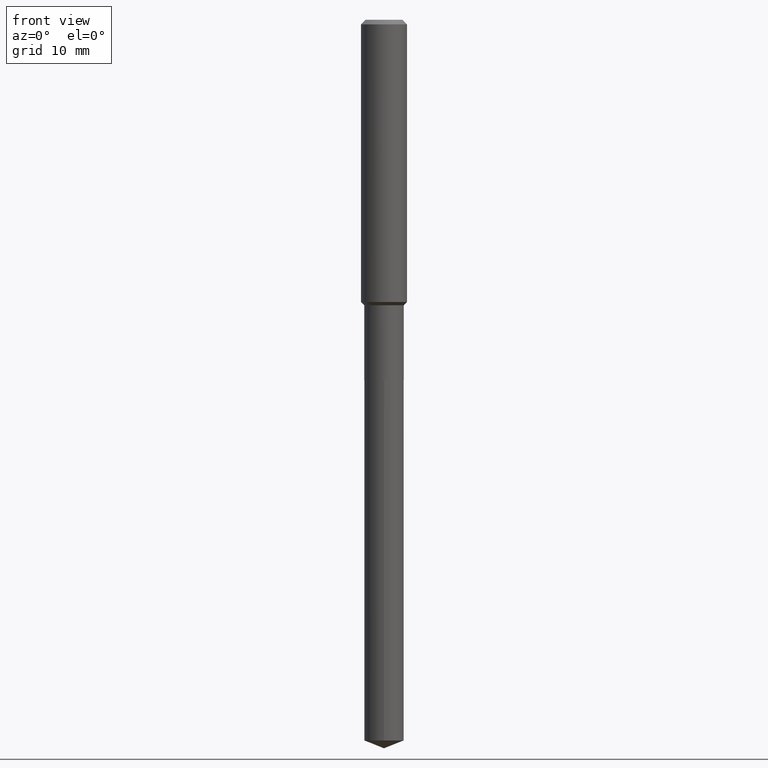
[diagram: clean part render]
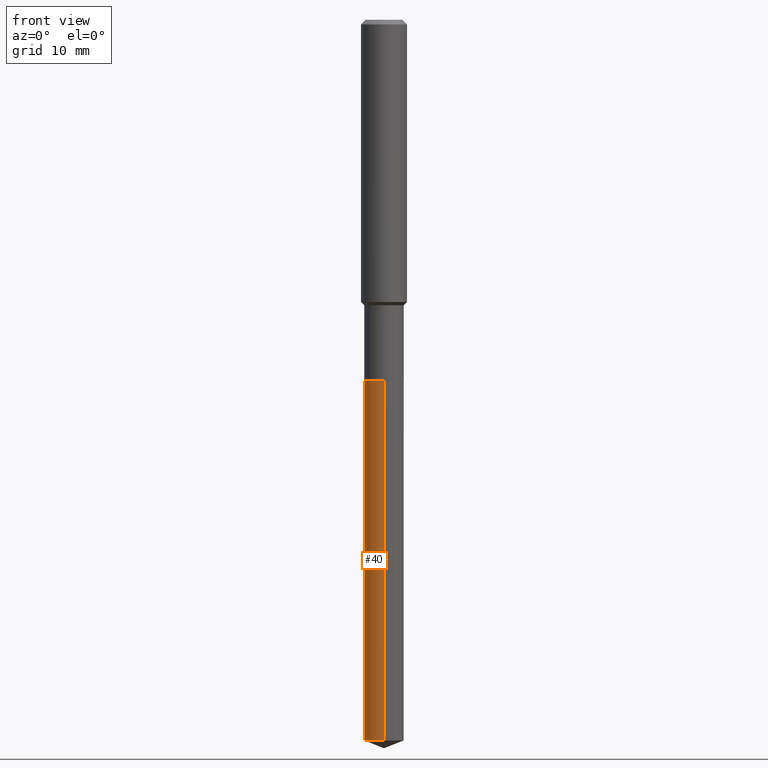
[diagram: same view with one face highlighted and labeled with its STEP entity id]
A machine part, front view. The second image highlights one B-rep face of the part: STEP entity #40.
In plain terms, the highlighted cylindrical surface (edge-blend (fillet) strip) has radius 2.5794 mm, axis along (-0, 0, 1).
Its self-contained STEP definition (entity closure, byte-faithful):
#13 = ORIENTED_EDGE ( 'NONE', *, *, #198, .T. ) ;
#19 = LINE ( 'NONE', #127, #143 ) ;
#20 = FACE_OUTER_BOUND ( 'NONE', #125, .T. ) ;
#24 = VERTEX_POINT ( 'NONE', #255 ) ;
#39 = VERTEX_POINT ( 'NONE', #216 ) ;
#40 = ADVANCED_FACE ( 'NONE', ( #20 ), #438, .T. ) ;
#67 = VECTOR ( 'NONE', #183, 39.37007874015748143 ) ;
#69 = CARTESIAN_POINT ( 'NONE',  ( -7.091198599189951267E-16, -0.1015500000000064545, -1.850400000000000045 ) ) ;
#93 = DIRECTION ( 'NONE',  ( -2.445330354646487579E-29, 3.491679609326664266E-15, 1.000000000000000000 ) ) ;
#94 = DIRECTION ( 'NONE',  ( -2.445330354646487299E-29, 3.491679609326663871E-15, 1.000000000000000000 ) ) ;
#111 = DIRECTION ( 'NONE',  ( -6.982962677686266711E-15, -1.000000000000000000, 2.690150658458161520E-15 ) ) ;
#125 = EDGE_LOOP ( 'NONE', ( #139, #13, #307, #253 ) ) ;
#127 = CARTESIAN_POINT ( 'NONE',  ( 7.215561481644269108E-16, 0.1015499999999935482, -1.850400000000000489 ) ) ;
#139 = ORIENTED_EDGE ( 'NONE', *, *, #485, .F. ) ;
#143 = VECTOR ( 'NONE', #93, 39.37007874015748143 ) ;
#162 = EDGE_CURVE ( 'NONE', #324, #24, #372, .T. ) ;
#167 = CARTESIAN_POINT ( 'NONE',  ( 4.525095478964977394E-29, -6.460637069395357576E-15, -1.850400000000000267 ) ) ;
#183 = DIRECTION ( 'NONE',  ( -2.445330354646487579E-29, 3.491679609326664266E-15, 1.000000000000000000 ) ) ;
#188 = DIRECTION ( 'NONE',  ( -2.445330354646487299E-29, 3.491679609326663871E-15, 1.000000000000000000 ) ) ;
#190 = CARTESIAN_POINT ( 'NONE',  ( -7.091198599189497672E-16, -0.1015500000000129216, -3.700198391201302783 ) ) ;
#198 = EDGE_CURVE ( 'NONE', #202, #324, #391, .T. ) ;
#202 = VERTEX_POINT ( 'NONE', #375 ) ;
#216 = CARTESIAN_POINT ( 'NONE',  ( 7.215561481644725661E-16, 0.1015499999999935482, -1.850400000000000489 ) ) ;
#248 = DIRECTION ( 'NONE',  ( -6.982962677686266711E-15, -1.000000000000000000, 2.690150658458161520E-15 ) ) ;
#253 = ORIENTED_EDGE ( 'NONE', *, *, #334, .F. ) ;
#255 = CARTESIAN_POINT ( 'NONE',  ( -7.091198599189951267E-16, -0.1015500000000064545, -1.850400000000000045 ) ) ;
#274 = DIRECTION ( 'NONE',  ( -2.445330354646487299E-29, 3.491679609326663871E-15, 1.000000000000000000 ) ) ;
#298 = CARTESIAN_POINT ( 'NONE',  ( 9.048463634945760829E-29, -1.291954039331821326E-14, -3.700198391201303227 ) ) ;
#303 = AXIS2_PLACEMENT_3D ( 'NONE', #167, #94, #248 ) ;
#307 = ORIENTED_EDGE ( 'NONE', *, *, #162, .T. ) ;
#324 = VERTEX_POINT ( 'NONE', #190 ) ;
#334 = EDGE_CURVE ( 'NONE', #39, #24, #400, .T. ) ;
#349 = CARTESIAN_POINT ( 'NONE',  ( 4.525095478964977394E-29, -6.460637069395357576E-15, -1.850400000000000267 ) ) ;
#351 = AXIS2_PLACEMENT_3D ( 'NONE', #349, #274, #111 ) ;
#372 = LINE ( 'NONE', #69, #67 ) ;
#375 = CARTESIAN_POINT ( 'NONE',  ( 7.215561481644721717E-16, 0.1015499999999870812, -3.700198391201303671 ) ) ;
#391 = CIRCLE ( 'NONE', #418, 0.1015500000000000014 ) ;
#400 = CIRCLE ( 'NONE', #351, 0.1015500000000000014 ) ;
#418 = AXIS2_PLACEMENT_3D ( 'NONE', #298, #188, #449 ) ;
#438 = CYLINDRICAL_SURFACE ( 'NONE', #303, 0.1015500000000000014 ) ;
#449 = DIRECTION ( 'NONE',  ( -6.982962677686266711E-15, -1.000000000000000000, 5.380301316916323039E-15 ) ) ;
#485 = EDGE_CURVE ( 'NONE', #202, #39, #19, .T. ) ;